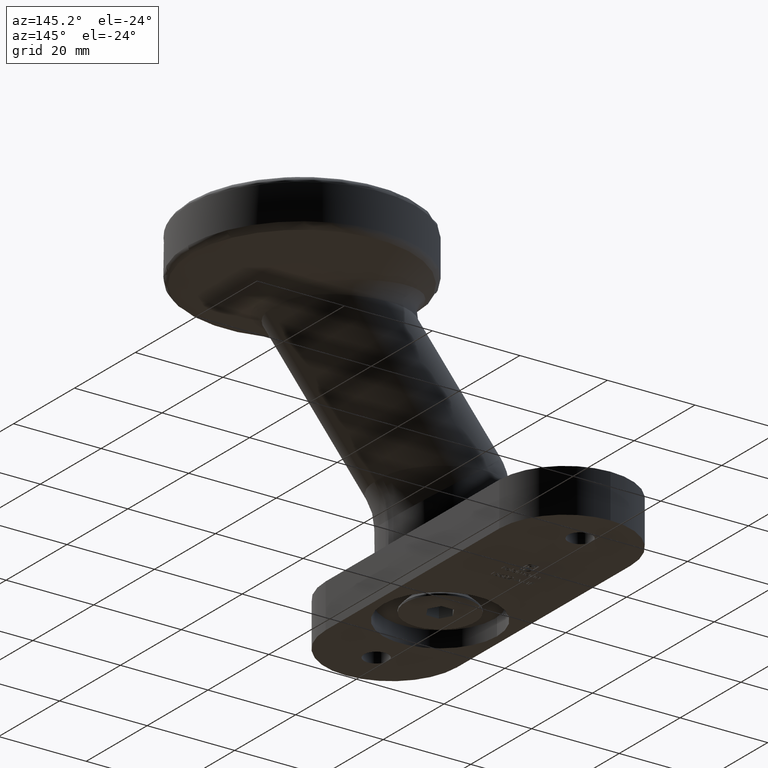
[diagram: clean part render]
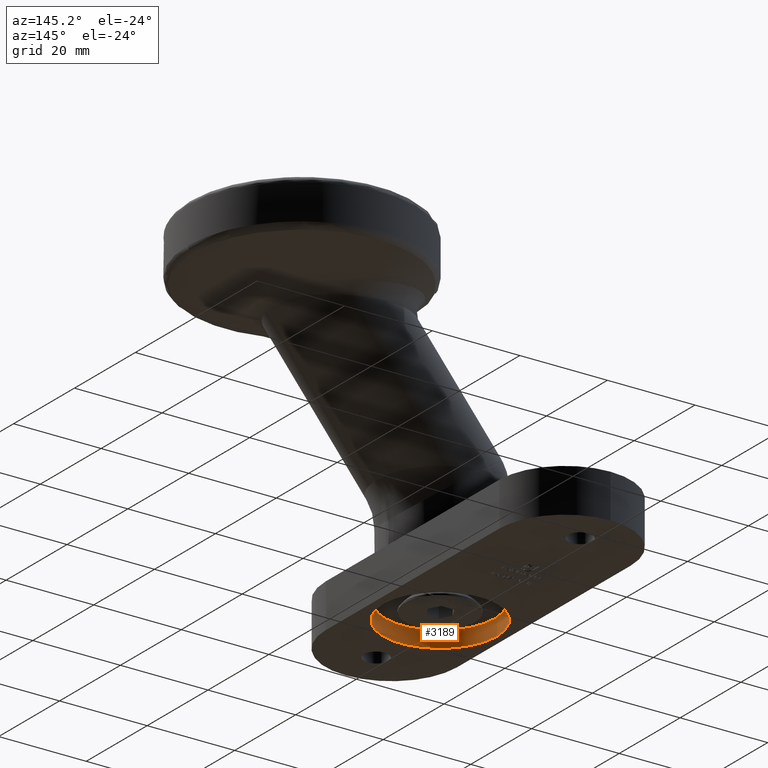
[diagram: same view with one face highlighted and labeled with its STEP entity id]
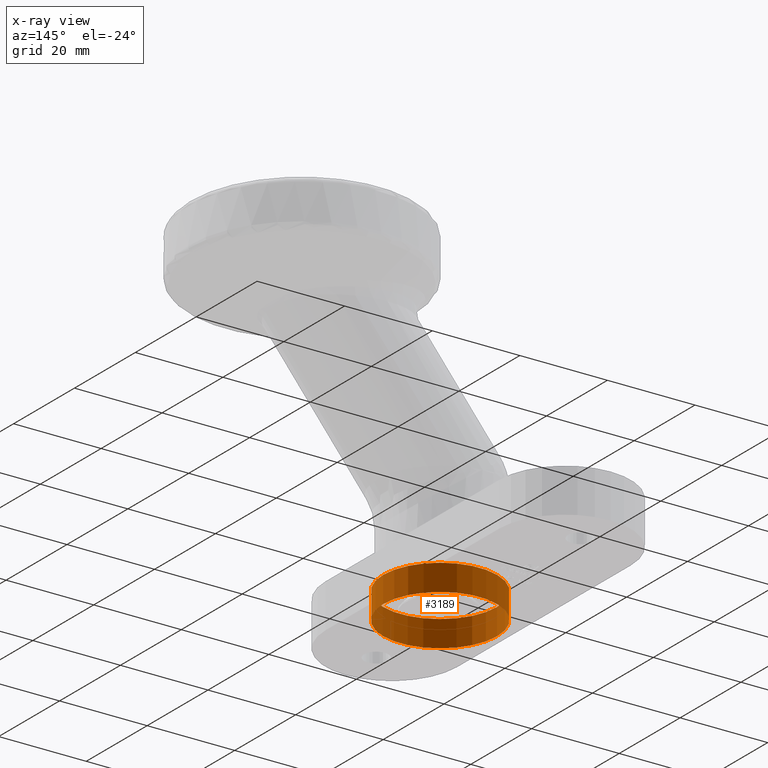
[diagram: x-ray of the same camera — body ghosted, the highlighted face saturated]
A machine part, auxiliary view. The second image highlights one B-rep face of the part: STEP entity #3189.
The next image is the same camera in x-ray: the body ghosted, the highlighted face saturated — about 0% of this face is hidden behind the body in this view.
In plain terms, the highlighted cylindrical surface (bore or boss wall) has radius 13 mm, axis along (-0, -0, -1).
Its self-contained STEP definition (entity closure, byte-faithful):
#56 = EDGE_CURVE ( 'NONE', #5020, #5020, #14064, .T. ) ;
#1780 = CARTESIAN_POINT ( 'NONE',  ( -13.00000000000000178, -12.50000000000000000, -5.000000000000000000 ) ) ;
#2709 = EDGE_LOOP ( 'NONE', ( #11428 ) ) ;
#3189 = ADVANCED_FACE ( 'NONE', ( #14976, #7133 ), #8454, .F. ) ;
#4005 = CARTESIAN_POINT ( 'NONE',  ( 0.000000000000000000, -12.50000000000000000, 1.000000000000000888 ) ) ;
#4421 = CARTESIAN_POINT ( 'NONE',  ( 0.000000000000000000, -12.50000000000000000, -5.000000000000000000 ) ) ;
#4999 = EDGE_CURVE ( 'NONE', #11327, #11327, #10131, .T. ) ;
#5020 = VERTEX_POINT ( 'NONE', #13888 ) ;
#5437 = DIRECTION ( 'NONE',  ( 1.000000000000000000, 0.000000000000000000, 0.000000000000000000 ) ) ;
#6453 = AXIS2_PLACEMENT_3D ( 'NONE', #4005, #9027, #5437 ) ;
#6753 = DIRECTION ( 'NONE',  ( 0.000000000000000000, 0.000000000000000000, -1.000000000000000000 ) ) ;
#7133 = FACE_OUTER_BOUND ( 'NONE', #12214, .T. ) ;
#8454 = CYLINDRICAL_SURFACE ( 'NONE', #14126, 13.00000000000000178 ) ;
#8812 = ORIENTED_EDGE ( 'NONE', *, *, #56, .F. ) ;
#9027 = DIRECTION ( 'NONE',  ( 0.000000000000000000, -0.000000000000000000, -1.000000000000000000 ) ) ;
#10131 = CIRCLE ( 'NONE', #10159, 13.00000000000000178 ) ;
#10159 = AXIS2_PLACEMENT_3D ( 'NONE', #4421, #6753, #14175 ) ;
#11327 = VERTEX_POINT ( 'NONE', #1780 ) ;
#11370 = DIRECTION ( 'NONE',  ( -0.000000000000000000, -0.000000000000000000, -1.000000000000000000 ) ) ;
#11421 = DIRECTION ( 'NONE',  ( -1.000000000000000000, 0.000000000000000000, 0.000000000000000000 ) ) ;
#11428 = ORIENTED_EDGE ( 'NONE', *, *, #4999, .T. ) ;
#12214 = EDGE_LOOP ( 'NONE', ( #8812 ) ) ;
#12781 = CARTESIAN_POINT ( 'NONE',  ( 0.000000000000000000, -12.50000000000000000, 41.76955262170047689 ) ) ;
#13888 = CARTESIAN_POINT ( 'NONE',  ( 13.00000000000000178, -12.50000000000000000, 1.000000000000000888 ) ) ;
#14064 = CIRCLE ( 'NONE', #6453, 13.00000000000000178 ) ;
#14126 = AXIS2_PLACEMENT_3D ( 'NONE', #12781, #11370, #11421 ) ;
#14175 = DIRECTION ( 'NONE',  ( -1.000000000000000000, 0.000000000000000000, 0.000000000000000000 ) ) ;
#14976 = FACE_OUTER_BOUND ( 'NONE', #2709, .T. ) ;